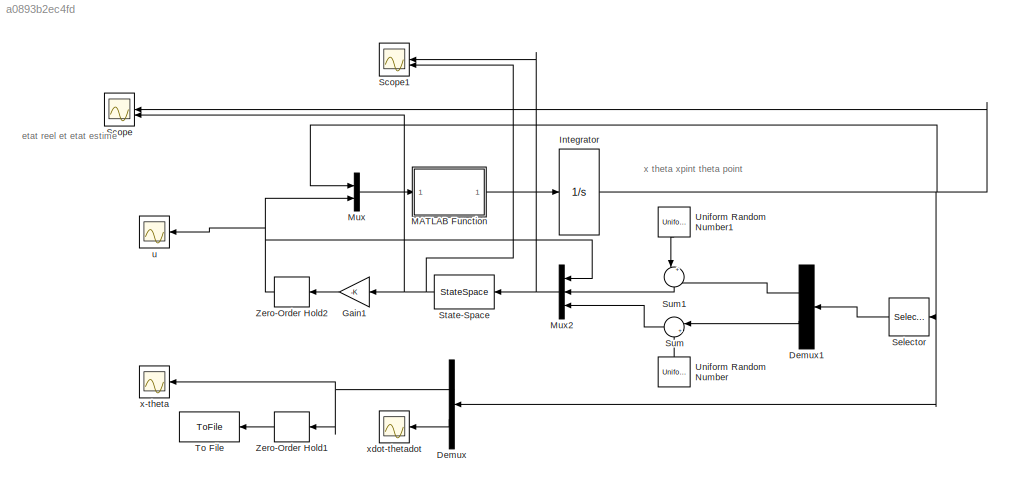
MODEL slx_a0893b2ec4fd
KIND model
CONFIG AbsTol = auto
CONFIG EnableMultiTasking = off
CONFIG FixedStep = auto
CONFIG MaxStep = auto
CONFIG MinStep = auto
CONFIG RelTol = 1e-3
CONFIG SampleTimeConstraint = Unconstrained
CONFIG SolverName = VariableStepAuto
CONFIG StartTime = 0.0
CONFIG StopTime = 5
BLOCK [Demux] Demux
  Outputs = 2
BLOCK [Demux] Demux1
  NameLocation = top
  Outputs = 2
BLOCK [Gain] Gain1
  Gain = -K
  Multiplication = Matrix(K*u)
  NameLocation = top
BLOCK [Integrator] Integrator
  InitialCondition = [0;0.3;0;0]
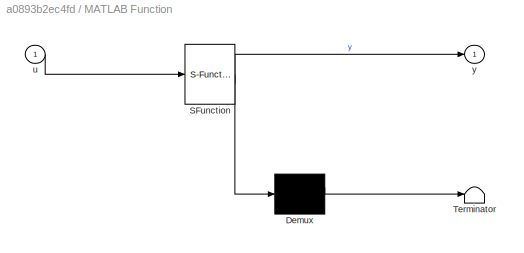
BLOCK [SubSystem] MATLAB Function
  ErrorFcn = Stateflow.Translate.translate
  PermitHierarchicalResolution = ExplicitOnly
  SFBlockType = MATLAB Function
  TreatAsAtomicUnit = on
BLOCK [Demux] MATLAB Function/ Demux 
  Outputs = 1
BLOCK [S-Function] MATLAB Function/ SFunction 
  EnableBusSupport = on
  FunctionName = sf_sfun
  PortCounts = [1 2]
  SFcnIsStateOwnerBlock = off
  SFunctionDeploymentMode = off
  Tag = Stateflow S-Function 2
BLOCK [Terminator] MATLAB Function/ Terminator 
BLOCK [Inport] MATLAB Function/u
BLOCK [Outport] MATLAB Function/y
BLOCK [Mux] Mux
  DisplayOption = bar
  Inputs = 2
BLOCK [Mux] Mux2
  DisplayOption = bar
  Inputs = 3
  NameLocation = top
BLOCK [Scope] Scope
  Floating = off
  NameLocation = top
  NumInputPorts = 2
  ScopeSpecificationString = Simulink.scopes.TimeScopeBlockCfg('CurrentConfiguration', extmgr.ConfigurationSet(extmgr.Configuration('Core','General UI',true),extmgr.Configuration('Core','Source UI',true),extmgr.Configuration('Sources','WiredSimulink',true,'DataLoggingVariableName','ScopeData1'),extmgr.Configuration('Visuals','Time Domain',true,'SerializedDisplays',{struct('MinYLimReal','-5.69887','MaxYLimReal','2.37604','YLab...<+2130ch>
BLOCK [Scope] Scope1
  Floating = off
  NameLocation = top
  NumInputPorts = 2
  ScopeSpecificationString = Simulink.scopes.TimeScopeBlockCfg('CurrentConfiguration', extmgr.ConfigurationSet(extmgr.Configuration('Core','General UI',true),extmgr.Configuration('Core','Source UI',true),extmgr.Configuration('Sources','WiredSimulink',true,'DataLoggingVariableName','ScopeData1'),extmgr.Configuration('Visuals','Time Domain',true,'SerializedDisplays',{struct('MinYLimReal','-4','MaxYLimReal','4','YLabelReal','','...<+2064ch>
BLOCK [Selector] Selector
  IndexOptions = Index vector (dialog)
  Indices = [1 2]
  InputPortWidth = 4
  NameLocation = top
  OutputSizes = 1
BLOCK [StateSpace] State-Space
  A = A-L*C
  B = [B L]
  C = eye(4)
  D = [0 0 0 0;0 0 0 0;0 0 0 0;0 0 0]
  InitialCondition = 0
  NameLocation = top
BLOCK [Sum] Sum
  Inputs = |++
  NameLocation = top
BLOCK [Sum] Sum1
  Inputs = |++
  NameLocation = left
BLOCK [ToFile] To File
  Filename = xtheta.mat
  SampleTime = 0.01
  SaveFormat = Timeseries
BLOCK [UniformRandomNumber] Uniform Random Number
  Maximum = 0.02
  Minimum = -0.02
  NameLocation = right
  SampleTime = 1/1000
BLOCK [UniformRandomNumber] Uniform Random Number1
  Maximum = 0.02
  Minimum = -0.02
  NameLocation = left
  SampleTime = 1/100
BLOCK [ZeroOrderHold] Zero-Order Hold1
  SampleTime = 0.01
BLOCK [ZeroOrderHold] Zero-Order Hold2
  SampleTime = 0.01
BLOCK [Scope] u
  Floating = off
  NumInputPorts = 1
  ScopeSpecificationString = Simulink.scopes.TimeScopeBlockCfg('CurrentConfiguration', extmgr.ConfigurationSet(extmgr.Configuration('Core','General UI',true),extmgr.Configuration('Core','Source UI',true),extmgr.Configuration('Sources','WiredSimulink',true,'DataLoggingVariableName','ScopeData2'),extmgr.Configuration('Visuals','Time Domain',true,'SerializedDisplays',{struct('MinYLimReal','-22.08432','MaxYLimReal','22.92684','YL...<+1454ch>
BLOCK [Scope] x-theta
  Floating = off
  NumInputPorts = 1
  ScopeSpecificationString = Simulink.scopes.TimeScopeBlockCfg('CurrentConfiguration', extmgr.ConfigurationSet(extmgr.Configuration('Core','General UI',true),extmgr.Configuration('Core','Source UI',true),extmgr.Configuration('Sources','WiredSimulink',true,'DataLoggingVariableName','ScopeData3'),extmgr.Configuration('Visuals','Time Domain',true,'SerializedDisplays',{struct('MinYLimReal','-0.5','MaxYLimReal','0.5','YLabelReal',...<+1437ch>
BLOCK [Scope] xdot-thetadot
  Floating = off
  NumInputPorts = 1
  ScopeSpecificationString = Simulink.scopes.TimeScopeBlockCfg('CurrentConfiguration', extmgr.ConfigurationSet(extmgr.Configuration('Core','General UI',true),extmgr.Configuration('Core','Source UI',true),extmgr.Configuration('Sources','WiredSimulink',true),extmgr.Configuration('Visuals','Time Domain',true,'SerializedDisplays',{struct('MinYLimReal','-0.64492','MaxYLimReal','1.9693','YLabelReal','','MinYLimMag','0.00000','MaxYL...<+1414ch>
ANNOTATION (root): etat reel et etat estime
ANNOTATION (root): x theta xpint theta point
LINE Demux1:1 -> Sum1:2
LINE Demux1:2 -> Sum:1
NET Demux:1 -> Zero-Order Hold1:1, x-theta:1
LINE Demux:2 -> xdot-thetadot:1
LINE Gain1:1 -> Zero-Order Hold2:1
NET Integrator:1 -> Demux:1, Mux:1, Scope:1, Selector:1
LINE MATLAB Function:1 -> Integrator:1
NET Mux2:1 -> Scope1:1, State-Space:1
LINE Mux:1 -> MATLAB Function:1
LINE Selector:1 -> Demux1:1
NET State-Space:1 -> Gain1:1, Scope1:2, Scope:2
LINE Sum1:1 -> Mux2:2
LINE Sum:1 -> Mux2:3
LINE Uniform Random Number1:1 -> Sum1:1
LINE Uniform Random Number:1 -> Sum:2
LINE Zero-Order Hold1:1 -> To File:1
NET Zero-Order Hold2:1 -> Mux2:1, Mux:2, u:1
note: NET lines group one-source signal fan-out (src -> all destinations, sorted); 1:1 wires keep LINE
CHART MATLAB Function states=1 transitions=1
  STATE_LABEL 'eML_blk_kernel()'
  STATE_LABEL "SCRIPT:\nfunction y = dynamique(u)\n% fonction définissant la dynamique du système: renvoie f(X,U) avec X\n% l'état, et U la variable de commande physique (composante T de la force\n% appliquée au chariot)\n\nx= u(1); %position du chariot\ntheta= u(2); %inclinaison de la barre\nxdot= u(3); % vitesse du chariot\nthetadot= u(4); % vitesse angulaire de la barre\nT= u(5); % force appliquée au chariot\n\n% Definti...<+592ch>"
CHART  states=0 transitions=0
